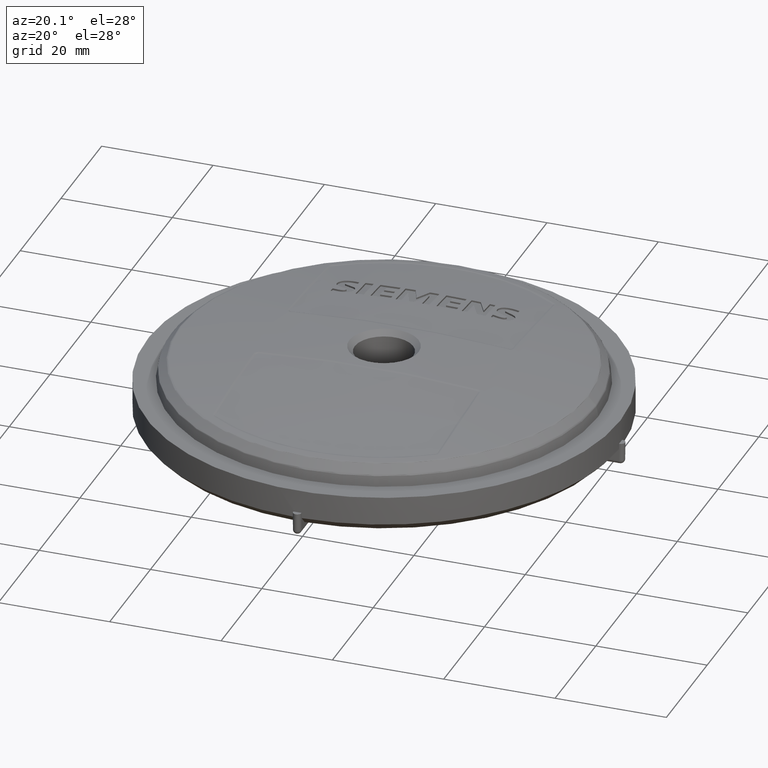
[diagram: clean part render]
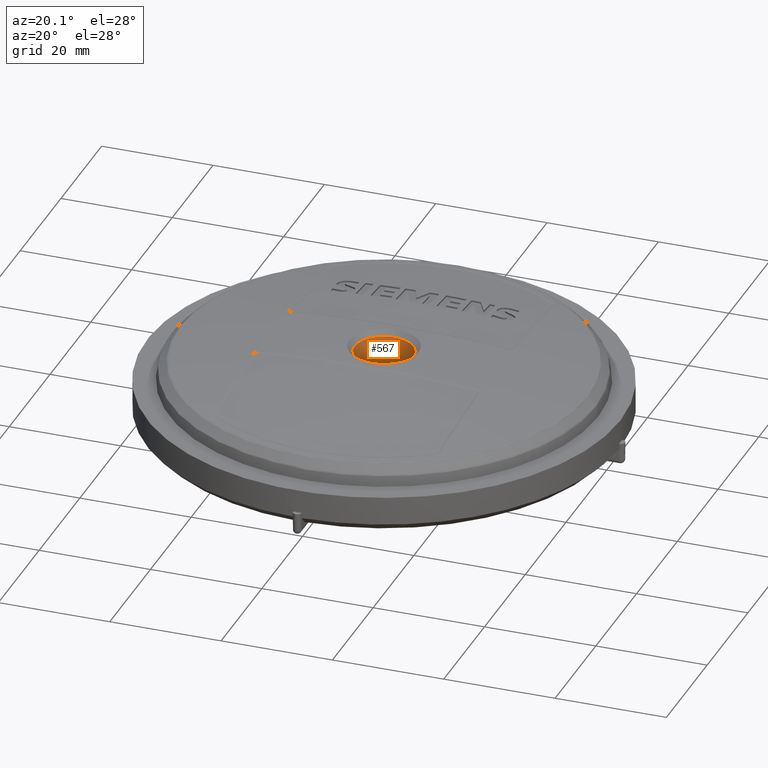
[diagram: same view with one face highlighted and labeled with its STEP entity id]
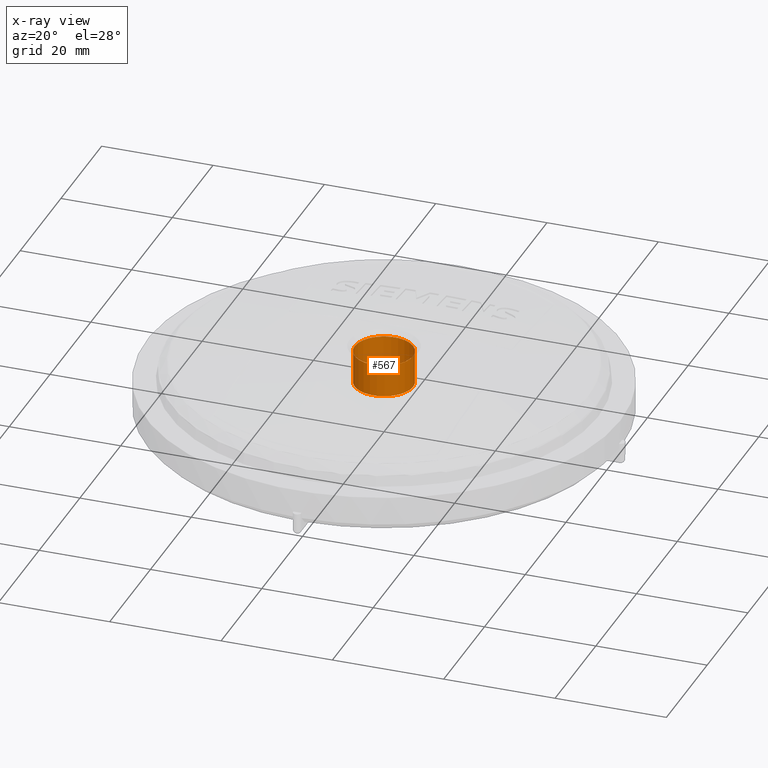
[diagram: x-ray of the same camera — body ghosted, the highlighted face saturated]
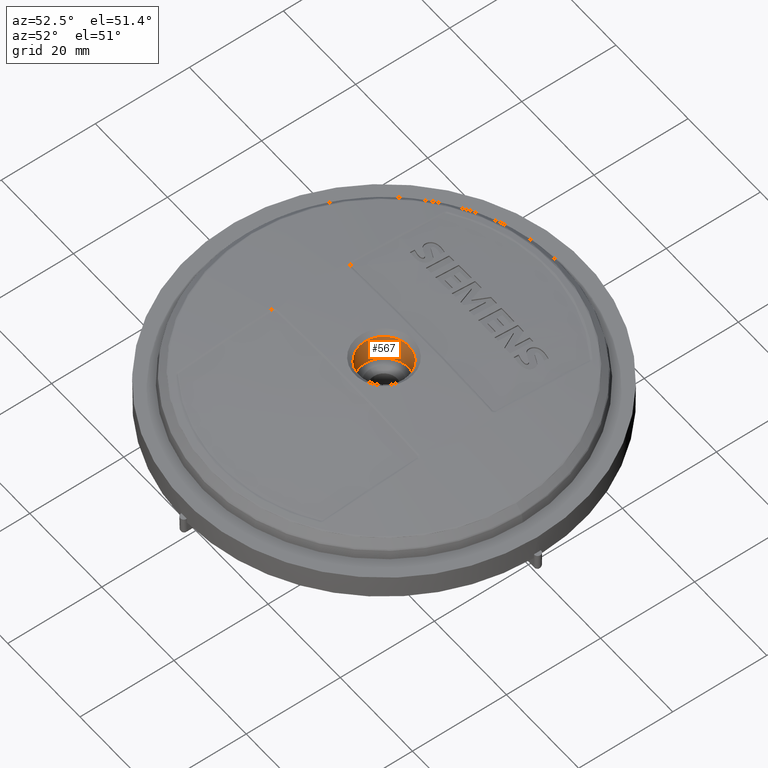
[diagram: same view with one face highlighted and labeled with its STEP entity id]
A machine part, auxiliary view. The second image highlights one B-rep face of the part: STEP entity #567.
The next image is the same camera in x-ray: the body ghosted, the highlighted face saturated — about 1% of this face is hidden behind the body in this view.
A second angle (auxiliary view) of the same face is appended — the face is thin or edge-on in the first view.
In plain terms, the highlighted cylindrical surface (bore or boss wall) has radius 5.25 mm, axis along (0, 0, 1).
Its self-contained STEP definition (entity closure, byte-faithful):
#311=CYLINDRICAL_SURFACE('',#2508,5.25);
#434=FACE_BOUND('',#862,.T.);
#435=FACE_BOUND('',#863,.T.);
#473=CIRCLE('',#2496,5.25);
#480=CIRCLE('',#2507,5.25);
#567=ADVANCED_FACE('',(#434,#435),#311,.F.);
#862=EDGE_LOOP('',(#1058));
#863=EDGE_LOOP('',(#1059));
#1058=ORIENTED_EDGE('',*,*,#2029,.F.);
#1059=ORIENTED_EDGE('',*,*,#2006,.T.);
#1761=VERTEX_POINT('',#3264);
#1783=VERTEX_POINT('',#3831);
#2006=EDGE_CURVE('',#1761,#1761,#473,.T.);
#2029=EDGE_CURVE('',#1783,#1783,#480,.T.);
#2496=AXIS2_PLACEMENT_3D('',#3263,#2682,#2683);
#2507=AXIS2_PLACEMENT_3D('',#3830,#2704,#2705);
#2508=AXIS2_PLACEMENT_3D('',#3832,#2706,#2707);
#2682=DIRECTION('',(0.,0.,-1.));
#2683=DIRECTION('',(1.,0.,0.));
#2704=DIRECTION('',(0.,0.,-1.));
#2705=DIRECTION('',(1.,0.,0.));
#2706=DIRECTION('',(0.,0.,1.));
#2707=DIRECTION('',(-1.,0.,0.));
#3263=CARTESIAN_POINT('',(5.02898827078395E-30,7.86315457190769E-15,7.8));
#3264=CARTESIAN_POINT('',(5.25,7.86315457190769E-15,7.8));
#3830=CARTESIAN_POINT('',(5.02898827078395E-30,7.86315457190769E-15,13.667069));
#3831=CARTESIAN_POINT('',(5.25,7.86315457190769E-15,13.667069));
#3832=CARTESIAN_POINT('',(5.02898827078395E-30,7.86315457190769E-15,3.7));